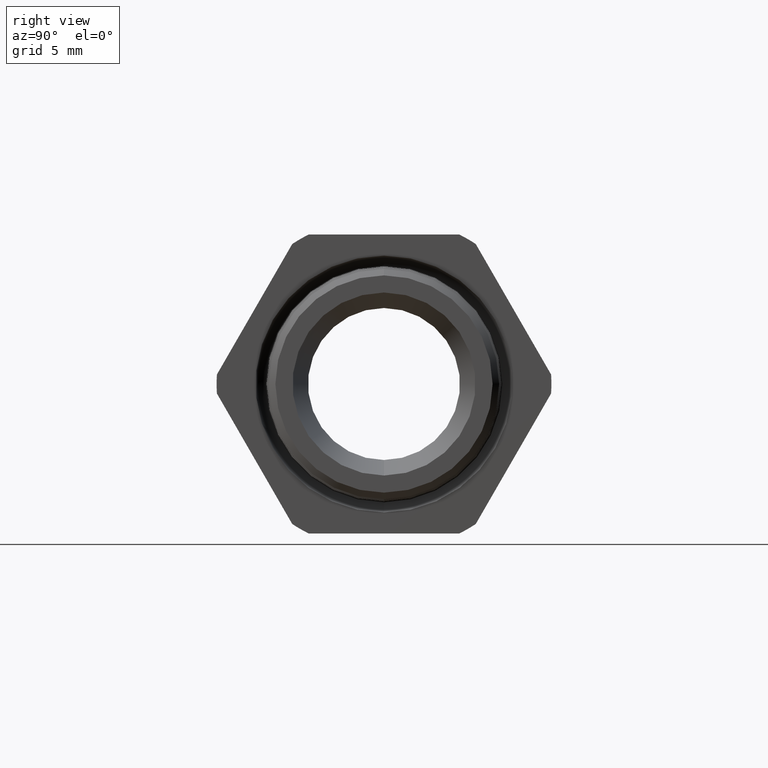
[diagram: clean part render]
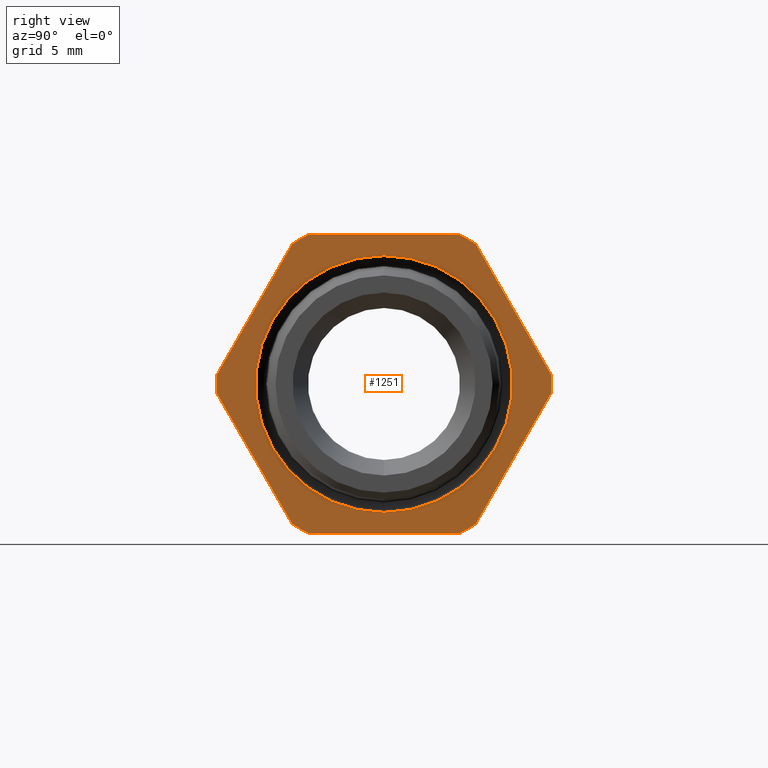
[diagram: same view with one face highlighted and labeled with its STEP entity id]
A machine part, right view. The second image highlights one B-rep face of the part: STEP entity #1251.
In plain terms, the highlighted planar face has unit normal (-1, 0, 0).
Its self-contained STEP definition (entity closure, byte-faithful):
#21 = CARTESIAN_POINT ( 'NONE',  ( 1.365923996832131600E-016, 0.1810813248601898000, 0.2763579450402656200 ) ) ;
#22 = CARTESIAN_POINT ( 'NONE',  ( 0.0000000000000000000, -0.1487923385124373700, -0.2950000000000005400 ) ) ;
#81 = DIRECTION ( 'NONE',  ( 0.0000000000000000000, -0.5000000000000000000, 0.8660254037844386000 ) ) ;
#82 = VECTOR ( 'NONE', #81, 39.37007874015748900 ) ;
#83 = CARTESIAN_POINT ( 'NONE',  ( 0.0000000000000000000, 0.3298736633726286900, 0.01864205495973408900 ) ) ;
#84 = LINE ( 'NONE', #83, #82 ) ;
#176 = DIRECTION ( 'NONE',  ( 0.0000000000000000000, 1.000000000000000000, 0.0000000000000000000 ) ) ;
#177 = VECTOR ( 'NONE', #176, 39.37007874015748100 ) ;
#178 = CARTESIAN_POINT ( 'NONE',  ( 0.0000000000000000000, -0.1487923385124373900, -0.2950000000000005400 ) ) ;
#179 = LINE ( 'NONE', #178, #177 ) ;
#181 = CARTESIAN_POINT ( 'NONE',  ( 1.415887936068084800E-016, 0.0000000000000000000, 0.2533542799999999300 ) ) ;
#386 = DIRECTION ( 'NONE',  ( 0.0000000000000000000, 0.4999999999999994400, 0.8660254037844389300 ) ) ;
#387 = VECTOR ( 'NONE', #386, 39.37007874015748100 ) ;
#388 = CARTESIAN_POINT ( 'NONE',  ( 0.0000000000000000000, 0.1810813248601910200, -0.2763579450402648400 ) ) ;
#389 = LINE ( 'NONE', #388, #387 ) ;
#432 = DIRECTION ( 'NONE',  ( 0.0000000000000000000, 0.0000000000000000000, 1.000000000000000000 ) ) ;
#433 = DIRECTION ( 'NONE',  ( -1.000000000000000000, 0.0000000000000000000, 0.0000000000000000000 ) ) ;
#434 = CARTESIAN_POINT ( 'NONE',  ( 1.415887936068084800E-016, 0.0000000000000000000, 0.0000000000000000000 ) ) ;
#435 = AXIS2_PLACEMENT_3D ( 'NONE', #434, #433, #432 ) ;
#440 = CIRCLE ( 'NONE', #435, 0.2533542799999999900 ) ;
#509 = CARTESIAN_POINT ( 'NONE',  ( 1.365923996832131600E-016, 0.0000000000000000000, 0.0000000000000000000 ) ) ;
#510 = CIRCLE ( 'NONE', #511, 0.3304000000000001400 ) ;
#511 = AXIS2_PLACEMENT_3D ( 'NONE', #509, #512, #513 ) ;
#512 = DIRECTION ( 'NONE',  ( -1.000000000000000000, 0.0000000000000000000, 0.0000000000000000000 ) ) ;
#513 = DIRECTION ( 'NONE',  ( 0.0000000000000000000, 0.0000000000000000000, 1.000000000000000000 ) ) ;
#516 = CARTESIAN_POINT ( 'NONE',  ( 0.0000000000000000000, -0.1810813248601898000, 0.2763579450402656200 ) ) ;
#767 = DIRECTION ( 'NONE',  ( 0.0000000000000000000, 0.0000000000000000000, 1.000000000000000000 ) ) ;
#768 = DIRECTION ( 'NONE',  ( -1.000000000000000000, 0.0000000000000000000, 0.0000000000000000000 ) ) ;
#769 = AXIS2_PLACEMENT_3D ( 'NONE', #775, #768, #767 ) ;
#770 = CIRCLE ( 'NONE', #769, 0.3304000000000001400 ) ;
#775 = CARTESIAN_POINT ( 'NONE',  ( 1.365923996832131600E-016, 0.0000000000000000000, 0.0000000000000000000 ) ) ;
#1120 = CARTESIAN_POINT ( 'NONE',  ( 0.0000000000000000000, -0.3298736633726286300, -0.01864205495973507800 ) ) ;
#1149 = LINE ( 'NONE', #1209, #1208 ) ;
#1150 = CARTESIAN_POINT ( 'NONE',  ( 1.365923996832131600E-016, 0.3298736633726285800, -0.01864205495973528200 ) ) ;
#1155 = CARTESIAN_POINT ( 'NONE',  ( 0.0000000000000000000, 0.3298736633726286900, 0.01864205495973406500 ) ) ;
#1156 = DIRECTION ( 'NONE',  ( 0.0000000000000000000, 0.0000000000000000000, 1.000000000000000000 ) ) ;
#1157 = DIRECTION ( 'NONE',  ( -1.000000000000000000, 0.0000000000000000000, 0.0000000000000000000 ) ) ;
#1158 = CARTESIAN_POINT ( 'NONE',  ( 1.365923996832131600E-016, 0.0000000000000000000, 0.0000000000000000000 ) ) ;
#1159 = AXIS2_PLACEMENT_3D ( 'NONE', #1158, #1157, #1156 ) ;
#1164 = CIRCLE ( 'NONE', #1159, 0.3304000000000001400 ) ;
#1182 = CARTESIAN_POINT ( 'NONE',  ( 0.0000000000000000000, 0.1810813248601910200, -0.2763579450402648400 ) ) ;
#1187 = CARTESIAN_POINT ( 'NONE',  ( 1.365923996832131600E-016, 0.1487923385124373900, -0.2950000000000005400 ) ) ;
#1198 = DIRECTION ( 'NONE',  ( 0.0000000000000000000, 0.0000000000000000000, 1.000000000000000000 ) ) ;
#1199 = DIRECTION ( 'NONE',  ( -1.000000000000000000, 0.0000000000000000000, 0.0000000000000000000 ) ) ;
#1200 = CARTESIAN_POINT ( 'NONE',  ( 1.365923996832131600E-016, 0.0000000000000000000, 0.0000000000000000000 ) ) ;
#1201 = AXIS2_PLACEMENT_3D ( 'NONE', #1200, #1199, #1198 ) ;
#1202 = CIRCLE ( 'NONE', #1201, 0.3304000000000001400 ) ;
#1207 = DIRECTION ( 'NONE',  ( 0.0000000000000000000, 0.5000000000000002200, -0.8660254037844384900 ) ) ;
#1208 = VECTOR ( 'NONE', #1207, 39.37007874015749600 ) ;
#1209 = CARTESIAN_POINT ( 'NONE',  ( 0.0000000000000000000, -0.3298736633726285800, -0.01864205495973509500 ) ) ;
#1237 = DIRECTION ( 'NONE',  ( 0.0000000000000000000, 0.0000000000000000000, 1.000000000000000000 ) ) ;
#1238 = DIRECTION ( 'NONE',  ( -1.000000000000000000, 0.0000000000000000000, 0.0000000000000000000 ) ) ;
#1239 = CARTESIAN_POINT ( 'NONE',  ( 1.365923996832131600E-016, 0.0000000000000000000, 0.0000000000000000000 ) ) ;
#1240 = AXIS2_PLACEMENT_3D ( 'NONE', #1239, #1238, #1237 ) ;
#1241 = CIRCLE ( 'NONE', #1240, 0.3304000000000001400 ) ;
#1243 = EDGE_LOOP ( 'NONE', ( #1244, #1245 ) ) ;
#1244 = ORIENTED_EDGE ( 'NONE', *, *, #1544, .T. ) ;
#1245 = ORIENTED_EDGE ( 'NONE', *, *, #1932, .T. ) ;
#1246 = ORIENTED_EDGE ( 'NONE', *, *, #2704, .T. ) ;
#1247 = EDGE_LOOP ( 'NONE', ( #1246, #2705, #1803, #1784, #1830, #1749, #1747, #1746, #1705, #1419, #1420, #1414 ) ) ;
#1248 = VERTEX_POINT ( 'NONE', #516 ) ;
#1250 = EDGE_CURVE ( 'NONE', #1248, #1688, #510, .T. ) ;
#1251 = ADVANCED_FACE ( 'NONE', ( #1639, #1638 ), #1637, .F. ) ;
#1414 = ORIENTED_EDGE ( 'NONE', *, *, #2494, .F. ) ;
#1418 = EDGE_CURVE ( 'NONE', #1248, #1988, #1665, .T. ) ;
#1419 = ORIENTED_EDGE ( 'NONE', *, *, #1250, .F. ) ;
#1420 = ORIENTED_EDGE ( 'NONE', *, *, #1418, .T. ) ;
#1543 = VERTEX_POINT ( 'NONE', #2894 ) ;
#1544 = EDGE_CURVE ( 'NONE', #1795, #1543, #2956, .T. ) ;
#1616 = DIRECTION ( 'NONE',  ( 0.0000000000000000000, 0.0000000000000000000, 1.000000000000000000 ) ) ;
#1633 = DIRECTION ( 'NONE',  ( -1.000000000000000000, 0.0000000000000000000, 0.0000000000000000000 ) ) ;
#1634 = CARTESIAN_POINT ( 'NONE',  ( 1.415887936068084800E-016, 0.3304000000000001400, 0.0000000000000000000 ) ) ;
#1636 = AXIS2_PLACEMENT_3D ( 'NONE', #1634, #1633, #1616 ) ;
#1637 = PLANE ( 'NONE',  #1636 ) ;
#1638 = FACE_OUTER_BOUND ( 'NONE', #1247, .T. ) ;
#1639 = FACE_BOUND ( 'NONE', #1243, .T. ) ;
#1658 = DIRECTION ( 'NONE',  ( 0.0000000000000000000, -0.5000000000000003300, -0.8660254037844383700 ) ) ;
#1659 = VECTOR ( 'NONE', #1658, 39.37007874015748100 ) ;
#1664 = CARTESIAN_POINT ( 'NONE',  ( 0.0000000000000000000, -0.1810813248601898800, 0.2763579450402656200 ) ) ;
#1665 = LINE ( 'NONE', #1664, #1659 ) ;
#1688 = VERTEX_POINT ( 'NONE', #3038 ) ;
#1691 = EDGE_CURVE ( 'NONE', #1693, #1711, #3037, .T. ) ;
#1693 = VERTEX_POINT ( 'NONE', #3026 ) ;
#1694 = VERTEX_POINT ( 'NONE', #3025 ) ;
#1695 = EDGE_CURVE ( 'NONE', #1693, #1688, #3024, .T. ) ;
#1705 = ORIENTED_EDGE ( 'NONE', *, *, #1695, .T. ) ;
#1709 = VERTEX_POINT ( 'NONE', #22 ) ;
#1711 = VERTEX_POINT ( 'NONE', #21 ) ;
#1744 = EDGE_CURVE ( 'NONE', #2698, #1711, #84, .T. ) ;
#1746 = ORIENTED_EDGE ( 'NONE', *, *, #1691, .F. ) ;
#1747 = ORIENTED_EDGE ( 'NONE', *, *, #1744, .T. ) ;
#1749 = ORIENTED_EDGE ( 'NONE', *, *, #2697, .F. ) ;
#1784 = ORIENTED_EDGE ( 'NONE', *, *, #2721, .F. ) ;
#1795 = VERTEX_POINT ( 'NONE', #181 ) ;
#1797 = EDGE_CURVE ( 'NONE', #1709, #2713, #179, .T. ) ;
#1803 = ORIENTED_EDGE ( 'NONE', *, *, #1797, .T. ) ;
#1830 = ORIENTED_EDGE ( 'NONE', *, *, #1926, .T. ) ;
#1926 = EDGE_CURVE ( 'NONE', #2717, #2701, #389, .T. ) ;
#1932 = EDGE_CURVE ( 'NONE', #1543, #1795, #440, .T. ) ;
#1988 = VERTEX_POINT ( 'NONE', #2264 ) ;
#2264 = CARTESIAN_POINT ( 'NONE',  ( 1.365923996832131600E-016, -0.3298736633726286300, 0.01864205495973465500 ) ) ;
#2494 = EDGE_CURVE ( 'NONE', #2688, #1988, #770, .T. ) ;
#2688 = VERTEX_POINT ( 'NONE', #1120 ) ;
#2697 = EDGE_CURVE ( 'NONE', #2698, #2701, #1164, .T. ) ;
#2698 = VERTEX_POINT ( 'NONE', #1155 ) ;
#2701 = VERTEX_POINT ( 'NONE', #1150 ) ;
#2704 = EDGE_CURVE ( 'NONE', #2688, #1694, #1149, .T. ) ;
#2705 = ORIENTED_EDGE ( 'NONE', *, *, #2708, .F. ) ;
#2708 = EDGE_CURVE ( 'NONE', #1709, #1694, #1202, .T. ) ;
#2713 = VERTEX_POINT ( 'NONE', #1187 ) ;
#2717 = VERTEX_POINT ( 'NONE', #1182 ) ;
#2721 = EDGE_CURVE ( 'NONE', #2717, #2713, #1241, .T. ) ;
#2894 = CARTESIAN_POINT ( 'NONE',  ( 1.415887936068084800E-016, 3.102695080522822500E-017, -0.2533542799999999300 ) ) ;
#2952 = DIRECTION ( 'NONE',  ( 0.0000000000000000000, 0.0000000000000000000, 1.000000000000000000 ) ) ;
#2953 = DIRECTION ( 'NONE',  ( -1.000000000000000000, 0.0000000000000000000, 0.0000000000000000000 ) ) ;
#2954 = CARTESIAN_POINT ( 'NONE',  ( 1.415887936068084800E-016, 0.0000000000000000000, 0.0000000000000000000 ) ) ;
#2955 = AXIS2_PLACEMENT_3D ( 'NONE', #2954, #2953, #2952 ) ;
#2956 = CIRCLE ( 'NONE', #2955, 0.2533542799999999900 ) ;
#3021 = DIRECTION ( 'NONE',  ( 0.0000000000000000000, -1.000000000000000000, 0.0000000000000000000 ) ) ;
#3022 = VECTOR ( 'NONE', #3021, 39.37007874015748100 ) ;
#3023 = CARTESIAN_POINT ( 'NONE',  ( 0.0000000000000000000, 0.1487923385124393900, 0.2949999999999994300 ) ) ;
#3024 = LINE ( 'NONE', #3023, #3022 ) ;
#3025 = CARTESIAN_POINT ( 'NONE',  ( 1.365923996832131600E-016, -0.1810813248601905200, -0.2763579450402651700 ) ) ;
#3026 = CARTESIAN_POINT ( 'NONE',  ( 0.0000000000000000000, 0.1487923385124394500, 0.2949999999999994800 ) ) ;
#3033 = DIRECTION ( 'NONE',  ( 0.0000000000000000000, 0.0000000000000000000, 1.000000000000000000 ) ) ;
#3034 = DIRECTION ( 'NONE',  ( -1.000000000000000000, 0.0000000000000000000, 0.0000000000000000000 ) ) ;
#3035 = CARTESIAN_POINT ( 'NONE',  ( 1.365923996832131600E-016, 0.0000000000000000000, 0.0000000000000000000 ) ) ;
#3036 = AXIS2_PLACEMENT_3D ( 'NONE', #3035, #3034, #3033 ) ;
#3037 = CIRCLE ( 'NONE', #3036, 0.3304000000000001400 ) ;
#3038 = CARTESIAN_POINT ( 'NONE',  ( 1.365923996832131600E-016, -0.1487923385124394200, 0.2949999999999995400 ) ) ;